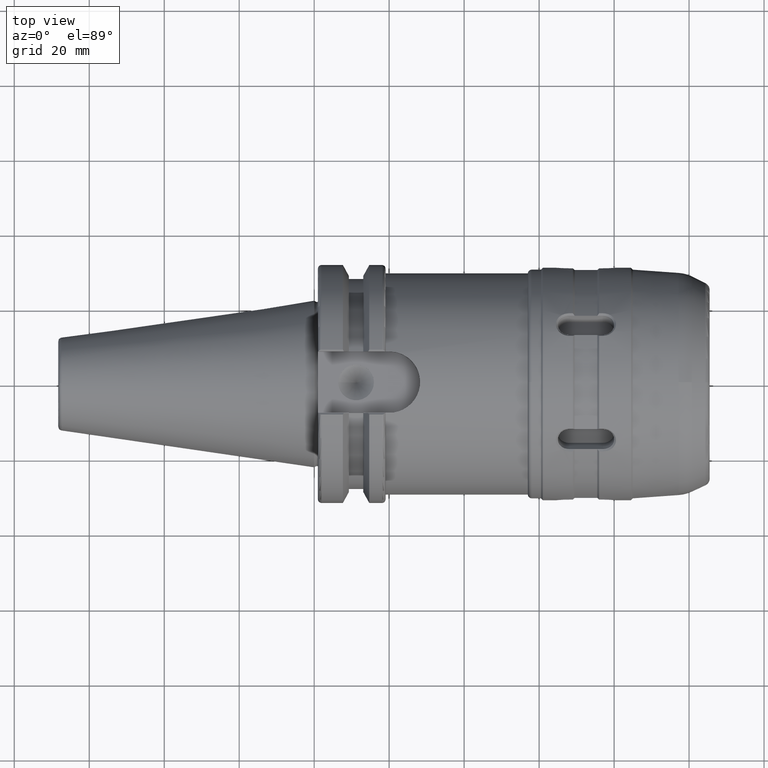
[diagram: clean part render]
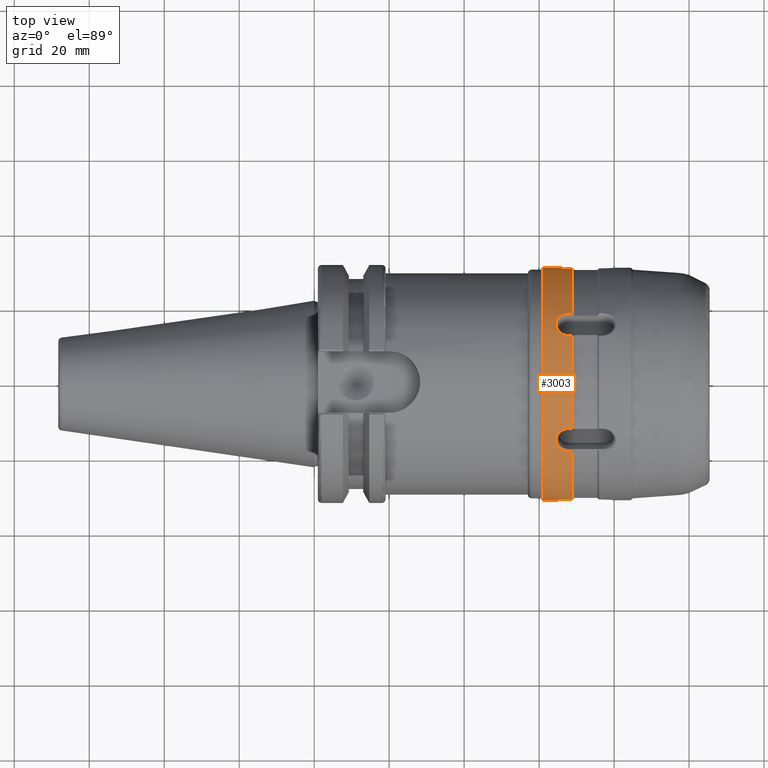
[diagram: same view with one face highlighted and labeled with its STEP entity id]
A machine part, top view. The second image highlights one B-rep face of the part: STEP entity #3003.
In plain terms, the highlighted cylindrical surface (bore or boss wall) has radius 31 mm, axis along (1, 0, 0).
Its self-contained STEP definition (entity closure, byte-faithful):
#382=FACE_OUTER_BOUND('',#568,.T.);
#568=EDGE_LOOP('',(#2611,#2612,#2613,#2614,#2615,#2616,#2617,#2618,#2619,
#2620,#2621,#2622,#2623,#2624,#2625,#2626,#2627,#2628,#2629,#2630,#2631,
#2632,#2633,#2634,#2635,#2636,#2637,#2638));
#675=CIRCLE('',#3253,31.);
#681=CIRCLE('',#3269,31.);
#687=CIRCLE('',#3285,31.);
#693=CIRCLE('',#3301,31.);
#699=CIRCLE('',#3317,31.);
#704=CIRCLE('',#3336,31.);
#705=CIRCLE('',#3338,31.);
#831=LINE('',#4883,#1034);
#833=LINE('',#4969,#1036);
#851=LINE('',#5123,#1054);
#853=LINE('',#5209,#1056);
#871=LINE('',#5368,#1074);
#873=LINE('',#5459,#1076);
#891=LINE('',#5631,#1094);
#893=LINE('',#5717,#1096);
#911=LINE('',#5871,#1114);
#913=LINE('',#5957,#1116);
#916=LINE('',#6011,#1119);
#917=LINE('',#6014,#1120);
#918=LINE('',#6029,#1121);
#1034=VECTOR('',#3773,10.);
#1036=VECTOR('',#3777,10.);
#1054=VECTOR('',#3825,10.);
#1056=VECTOR('',#3829,10.);
#1074=VECTOR('',#3877,10.);
#1076=VECTOR('',#3881,10.);
#1094=VECTOR('',#3929,10.);
#1096=VECTOR('',#3933,10.);
#1114=VECTOR('',#3981,10.);
#1116=VECTOR('',#3985,10.);
#1119=VECTOR('',#4034,31.);
#1120=VECTOR('',#4037,10.);
#1121=VECTOR('',#4038,10.);
#1172=B_SPLINE_CURVE_WITH_KNOTS('',3,(#4938,#4939,#4940,#4941,#4942,#4943,
#4944,#4945,#4946,#4947,#4948,#4949,#4950),.UNSPECIFIED.,.F.,.F.,(4,1,1,
1,1,1,1,1,1,1,4),(-0.904655840680631,-0.775419292011969,-0.646182743343307,
-0.613873606176142,-0.581564469008977,-0.516946194674646,-0.387709646005984,
-0.323091371671654,-0.258473097337323,-0.129236548668661,2.22044604925031E-16),
 .UNSPECIFIED.);
#1176=B_SPLINE_CURVE_WITH_KNOTS('',3,(#5178,#5179,#5180,#5181,#5182,#5183,
#5184,#5185,#5186,#5187,#5188,#5189,#5190),.UNSPECIFIED.,.F.,.F.,(4,1,1,
1,1,1,1,1,1,1,4),(-0.904655840680631,-0.775419292011969,-0.646182743343308,
-0.613873606176142,-0.59771903759256,-0.581564469008977,-0.387709646005985,
-0.258473097337323,-0.193854823002992,-0.129236548668661,2.22044604925031E-16),
 .UNSPECIFIED.);
#1181=B_SPLINE_CURVE_WITH_KNOTS('',3,(#5424,#5425,#5426,#5427,#5428,#5429,
#5430,#5431,#5432),.UNSPECIFIED.,.F.,.F.,(4,1,1,1,1,1,4),(-0.904655840680631,
-0.775419292011969,-0.646182743343307,-0.613873606176142,-0.597719037592559,
-0.581564469008977,-0.452237053198081),.UNSPECIFIED.);
#1182=B_SPLINE_CURVE_WITH_KNOTS('',3,(#5433,#5434,#5435,#5436,#5437,#5438,
#5439,#5440),.UNSPECIFIED.,.F.,.F.,(4,1,1,1,1,4),(-0.452237053198081,-0.387709646005984,
-0.258473097337323,-0.193854823002992,-0.129236548668661,3.93125706078922E-16),
 .UNSPECIFIED.);
#1186=B_SPLINE_CURVE_WITH_KNOTS('',3,(#5686,#5687,#5688,#5689,#5690,#5691,
#5692,#5693,#5694,#5695,#5696,#5697,#5698),.UNSPECIFIED.,.F.,.F.,(4,1,1,
1,1,1,1,1,1,1,4),(-0.904655840680631,-0.775419292011969,-0.710801017677639,
-0.646182743343308,-0.516946194674646,-0.323091371671654,-0.306936803088071,
-0.290782234504489,-0.258473097337323,-0.129236548668662,1.38777878078153E-17),
 .UNSPECIFIED.);
#1190=B_SPLINE_CURVE_WITH_KNOTS('',3,(#5926,#5927,#5928,#5929,#5930,#5931,
#5932,#5933,#5934,#5935,#5936,#5937,#5938),.UNSPECIFIED.,.F.,.F.,(4,1,1,
1,1,1,1,1,1,1,4),(-0.904655840680631,-0.775419292011969,-0.646182743343308,
-0.613873606176142,-0.59771903759256,-0.581564469008977,-0.387709646005985,
-0.258473097337323,-0.193854823002992,-0.129236548668661,2.22044604925033E-16),
 .UNSPECIFIED.);
#1192=B_SPLINE_CURVE_WITH_KNOTS('',3,(#6016,#6017,#6018,#6019,#6020,#6021,
#6022,#6023,#6024,#6025,#6026,#6027,#6028),.UNSPECIFIED.,.F.,.F.,(4,1,1,
1,1,1,1,1,1,1,4),(-0.904655840680631,-0.775419292011969,-0.646182743343308,
-0.613873606176142,-0.59771903759256,-0.581564469008977,-0.387709646005985,
-0.258473097337323,-0.193854823002992,-0.129236548668661,2.18503731613977E-16),
 .UNSPECIFIED.);
#1326=VERTEX_POINT('',#4877);
#1327=VERTEX_POINT('',#4881);
#1328=VERTEX_POINT('',#4936);
#1329=VERTEX_POINT('',#4965);
#1332=VERTEX_POINT('',#4977);
#1351=VERTEX_POINT('',#5121);
#1352=VERTEX_POINT('',#5176);
#1353=VERTEX_POINT('',#5205);
#1356=VERTEX_POINT('',#5217);
#1376=VERTEX_POINT('',#5366);
#1377=VERTEX_POINT('',#5421);
#1378=VERTEX_POINT('',#5423);
#1379=VERTEX_POINT('',#5455);
#1382=VERTEX_POINT('',#5467);
#1401=VERTEX_POINT('',#5629);
#1402=VERTEX_POINT('',#5684);
#1403=VERTEX_POINT('',#5713);
#1406=VERTEX_POINT('',#5725);
#1425=VERTEX_POINT('',#5869);
#1426=VERTEX_POINT('',#5924);
#1427=VERTEX_POINT('',#5953);
#1430=VERTEX_POINT('',#5965);
#1435=VERTEX_POINT('',#6000);
#1437=VERTEX_POINT('',#6010);
#1438=VERTEX_POINT('',#6013);
#1439=VERTEX_POINT('',#6015);
#1676=EDGE_CURVE('',#1327,#1326,#831,.T.);
#1678=EDGE_CURVE('',#1328,#1327,#1172,.T.);
#1681=EDGE_CURVE('',#1329,#1328,#833,.T.);
#1685=EDGE_CURVE('',#1332,#1329,#675,.T.);
#1714=EDGE_CURVE('',#1351,#1332,#851,.T.);
#1716=EDGE_CURVE('',#1352,#1351,#1176,.T.);
#1719=EDGE_CURVE('',#1353,#1352,#853,.T.);
#1723=EDGE_CURVE('',#1356,#1353,#681,.T.);
#1753=EDGE_CURVE('',#1376,#1356,#871,.T.);
#1755=EDGE_CURVE('',#1377,#1378,#1181,.T.);
#1756=EDGE_CURVE('',#1378,#1376,#1182,.T.);
#1759=EDGE_CURVE('',#1379,#1377,#873,.T.);
#1763=EDGE_CURVE('',#1382,#1379,#687,.T.);
#1792=EDGE_CURVE('',#1401,#1382,#891,.T.);
#1794=EDGE_CURVE('',#1402,#1401,#1186,.T.);
#1797=EDGE_CURVE('',#1403,#1402,#893,.T.);
#1801=EDGE_CURVE('',#1406,#1403,#693,.T.);
#1830=EDGE_CURVE('',#1425,#1406,#911,.T.);
#1832=EDGE_CURVE('',#1426,#1425,#1190,.T.);
#1835=EDGE_CURVE('',#1427,#1426,#913,.T.);
#1839=EDGE_CURVE('',#1430,#1427,#699,.T.);
#1848=EDGE_CURVE('',#1326,#1435,#704,.T.);
#1851=EDGE_CURVE('',#1378,#1437,#916,.T.);
#1852=EDGE_CURVE('',#1437,#1437,#705,.T.);
#1853=EDGE_CURVE('',#1438,#1430,#917,.T.);
#1854=EDGE_CURVE('',#1439,#1438,#1192,.T.);
#1855=EDGE_CURVE('',#1435,#1439,#918,.T.);
#2611=ORIENTED_EDGE('',*,*,#1681,.F.);
#2612=ORIENTED_EDGE('',*,*,#1685,.F.);
#2613=ORIENTED_EDGE('',*,*,#1714,.F.);
#2614=ORIENTED_EDGE('',*,*,#1716,.F.);
#2615=ORIENTED_EDGE('',*,*,#1719,.F.);
#2616=ORIENTED_EDGE('',*,*,#1723,.F.);
#2617=ORIENTED_EDGE('',*,*,#1753,.F.);
#2618=ORIENTED_EDGE('',*,*,#1756,.F.);
#2619=ORIENTED_EDGE('',*,*,#1851,.T.);
#2620=ORIENTED_EDGE('',*,*,#1852,.T.);
#2621=ORIENTED_EDGE('',*,*,#1851,.F.);
#2622=ORIENTED_EDGE('',*,*,#1755,.F.);
#2623=ORIENTED_EDGE('',*,*,#1759,.F.);
#2624=ORIENTED_EDGE('',*,*,#1763,.F.);
#2625=ORIENTED_EDGE('',*,*,#1792,.F.);
#2626=ORIENTED_EDGE('',*,*,#1794,.F.);
#2627=ORIENTED_EDGE('',*,*,#1797,.F.);
#2628=ORIENTED_EDGE('',*,*,#1801,.F.);
#2629=ORIENTED_EDGE('',*,*,#1830,.F.);
#2630=ORIENTED_EDGE('',*,*,#1832,.F.);
#2631=ORIENTED_EDGE('',*,*,#1835,.F.);
#2632=ORIENTED_EDGE('',*,*,#1839,.F.);
#2633=ORIENTED_EDGE('',*,*,#1853,.F.);
#2634=ORIENTED_EDGE('',*,*,#1854,.F.);
#2635=ORIENTED_EDGE('',*,*,#1855,.F.);
#2636=ORIENTED_EDGE('',*,*,#1848,.F.);
#2637=ORIENTED_EDGE('',*,*,#1676,.F.);
#2638=ORIENTED_EDGE('',*,*,#1678,.F.);
#2855=CYLINDRICAL_SURFACE('',#3337,31.);
#3003=ADVANCED_FACE('',(#382),#2855,.T.);
#3253=AXIS2_PLACEMENT_3D('',#4981,#3782,#3783);
#3269=AXIS2_PLACEMENT_3D('',#5221,#3834,#3835);
#3285=AXIS2_PLACEMENT_3D('',#5471,#3886,#3887);
#3301=AXIS2_PLACEMENT_3D('',#5729,#3938,#3939);
#3317=AXIS2_PLACEMENT_3D('',#5969,#3990,#3991);
#3336=AXIS2_PLACEMENT_3D('',#6001,#4030,#4031);
#3337=AXIS2_PLACEMENT_3D('',#6009,#4032,#4033);
#3338=AXIS2_PLACEMENT_3D('',#6012,#4035,#4036);
#3773=DIRECTION('',(1.,0.,0.));
#3777=DIRECTION('',(-1.,0.,0.));
#3782=DIRECTION('center_axis',(1.,0.,0.));
#3783=DIRECTION('ref_axis',(0.,0.,-1.));
#3825=DIRECTION('',(1.,0.,0.));
#3829=DIRECTION('',(-1.,0.,0.));
#3834=DIRECTION('center_axis',(1.,0.,0.));
#3835=DIRECTION('ref_axis',(0.,0.,-1.));
#3877=DIRECTION('',(1.,0.,0.));
#3881=DIRECTION('',(-1.,0.,0.));
#3886=DIRECTION('center_axis',(1.,0.,0.));
#3887=DIRECTION('ref_axis',(0.,0.,-1.));
#3929=DIRECTION('',(1.,0.,0.));
#3933=DIRECTION('',(-1.,0.,0.));
#3938=DIRECTION('center_axis',(1.,0.,0.));
#3939=DIRECTION('ref_axis',(0.,0.,-1.));
#3981=DIRECTION('',(1.,0.,0.));
#3985=DIRECTION('',(-1.,0.,0.));
#3990=DIRECTION('center_axis',(1.,0.,0.));
#3991=DIRECTION('ref_axis',(0.,0.,-1.));
#4030=DIRECTION('center_axis',(1.,0.,0.));
#4031=DIRECTION('ref_axis',(0.,0.,-1.));
#4032=DIRECTION('center_axis',(1.,0.,0.));
#4033=DIRECTION('ref_axis',(0.,1.,0.));
#4034=DIRECTION('',(-1.,0.,0.));
#4035=DIRECTION('center_axis',(1.,0.,0.));
#4036=DIRECTION('ref_axis',(0.,0.,-1.));
#4037=DIRECTION('',(1.,0.,0.));
#4038=DIRECTION('',(-1.,0.,0.));
#4877=CARTESIAN_POINT('',(12.,18.429753747395,-24.9267763020086));
#4881=CARTESIAN_POINT('',(11.,18.429753747395,-24.9267763020086));
#4883=CARTESIAN_POINT('',(8.,18.429753747395,-24.9267763020086));
#4936=CARTESIAN_POINT('',(11.,12.3723446382936,-28.42402308174));
#4938=CARTESIAN_POINT('Ctrl Pts',(11.,12.3723446382936,-28.42402308174));
#4939=CARTESIAN_POINT('Ctrl Pts',(10.4970771842854,12.3723446382936,-28.42402308174));
#4940=CARTESIAN_POINT('Ctrl Pts',(9.41124218297896,12.5945108429408,-28.3291379518645));
#4941=CARTESIAN_POINT('Ctrl Pts',(8.48424712302351,13.2823380716418,-28.0147794775608));
#4942=CARTESIAN_POINT('Ctrl Pts',(8.03035498320134,13.8528813193949,-27.7336147169953));
#4943=CARTESIAN_POINT('Ctrl Pts',(7.77010327328329,14.2674292493954,-27.5240961931931));
#4944=CARTESIAN_POINT('Ctrl Pts',(7.46359429484923,15.0622047536732,-27.1039213911845));
#4945=CARTESIAN_POINT('Ctrl Pts',(7.46356780118212,15.9404964130336,-26.597111945818));
#4946=CARTESIAN_POINT('Ctrl Pts',(7.81631423266722,16.8118758355077,-26.0492527416537));
#4947=CARTESIAN_POINT('Ctrl Pts',(8.38390459810497,17.5528905377004,-25.5580720729154));
#4948=CARTESIAN_POINT('Ctrl Pts',(9.40963362267906,18.2345090100924,-25.0731575148589));
#4949=CARTESIAN_POINT('Ctrl Pts',(10.4970771842854,18.4297537473952,-24.9267763020085));
#4950=CARTESIAN_POINT('Ctrl Pts',(11.,18.4297537473952,-24.9267763020085));
#4965=CARTESIAN_POINT('',(12.,12.3723446382939,-28.4240230817399));
#4969=CARTESIAN_POINT('',(8.,12.3723446382939,-28.4240230817399));
#4977=CARTESIAN_POINT('',(12.,-12.3723446382939,-28.4240230817399));
#4981=CARTESIAN_POINT('Origin',(12.,0.,0.));
#5121=CARTESIAN_POINT('',(11.,-12.3723446382939,-28.4240230817398));
#5123=CARTESIAN_POINT('',(8.,-12.3723446382939,-28.4240230817398));
#5176=CARTESIAN_POINT('',(11.,-18.4297537473953,-24.9267763020084));
#5178=CARTESIAN_POINT('Ctrl Pts',(11.,-18.4297537473953,-24.9267763020084));
#5179=CARTESIAN_POINT('Ctrl Pts',(10.4970771842855,-18.4297537473953,-24.9267763020084));
#5180=CARTESIAN_POINT('Ctrl Pts',(9.41235521528633,-18.2354258537435,-25.072254454589));
#5181=CARTESIAN_POINT('Ctrl Pts',(8.48552225926529,-17.6179848260173,-25.5114631475976));
#5182=CARTESIAN_POINT('Ctrl Pts',(8.07011031432345,-17.1337493147212,-25.8352132127233));
#5183=CARTESIAN_POINT('Ctrl Pts',(7.93439983287521,-16.9433293273806,-25.960344866675));
#5184=CARTESIAN_POINT('Ctrl Pts',(7.50654546211611,-16.2407089498084,-26.4163098821583));
#5185=CARTESIAN_POINT('Ctrl Pts',(7.33589340029948,-15.0470425558619,-27.1297599619316));
#5186=CARTESIAN_POINT('Ctrl Pts',(8.0711442805531,-13.7061530408895,-27.8103678876201));
#5187=CARTESIAN_POINT('Ctrl Pts',(8.78591821587874,-13.0638726163068,-28.1143468169065));
#5188=CARTESIAN_POINT('Ctrl Pts',(9.68557735755303,-12.5340963881548,-28.3551023774396));
#5189=CARTESIAN_POINT('Ctrl Pts',(10.4970771842854,-12.3723446382936,-28.42402308174));
#5190=CARTESIAN_POINT('Ctrl Pts',(11.,-12.3723446382936,-28.42402308174));
#5205=CARTESIAN_POINT('',(12.,-18.429753747395,-24.9267763020086));
#5209=CARTESIAN_POINT('',(8.,-18.429753747395,-24.9267763020086));
#5217=CARTESIAN_POINT('',(12.,-30.8020983856889,-3.49724677973123));
#5221=CARTESIAN_POINT('Origin',(12.,0.,0.));
#5366=CARTESIAN_POINT('',(11.,-30.8020983856889,-3.49724677973123));
#5368=CARTESIAN_POINT('',(8.,-30.8020983856889,-3.49724677973123));
#5421=CARTESIAN_POINT('',(11.,-30.7991118216197,3.49392896121436));
#5423=CARTESIAN_POINT('',(7.49590611160131,-30.9974559926452,7.61915364486501E-7));
#5424=CARTESIAN_POINT('Ctrl Pts',(11.,-30.7987175255084,3.4934909317903));
#5425=CARTESIAN_POINT('Ctrl Pts',(10.4975693062956,-30.7987175255084,3.4934909317903));
#5426=CARTESIAN_POINT('Ctrl Pts',(9.41391720535863,-30.8274857733144,3.25267007998341));
#5427=CARTESIAN_POINT('Ctrl Pts',(8.48811250669777,-30.898989553176,2.49907514499072));
#5428=CARTESIAN_POINT('Ctrl Pts',(8.07319472175539,-30.9371695210432,1.91846686657268));
#5429=CARTESIAN_POINT('Ctrl Pts',(7.93764707128572,-30.9502998861875,1.69124183339807));
#5430=CARTESIAN_POINT('Ctrl Pts',(7.63224070475512,-30.9813726563035,1.0940912226021));
#5431=CARTESIAN_POINT('Ctrl Pts',(7.49715044348278,-30.9962010453269,0.516375129633201));
#5432=CARTESIAN_POINT('Ctrl Pts',(7.49659268024297,-30.996588027987,1.12341766420054E-6));
#5433=CARTESIAN_POINT('Ctrl Pts',(7.49281043029032,-31.0003651202757,-4.88449250712897E-7));
#5434=CARTESIAN_POINT('Ctrl Pts',(7.49253093683462,-31.0005586547839,-0.257948509005002));
#5435=CARTESIAN_POINT('Ctrl Pts',(7.58115878700688,-30.9915552811669,-1.03461956969995));
#5436=CARTESIAN_POINT('Ctrl Pts',(8.07114958964886,-30.9375606102236,-2.03530370792798));
#5437=CARTESIAN_POINT('Ctrl Pts',(8.78592363852645,-30.8796739654829,-2.74352539898177));
#5438=CARTESIAN_POINT('Ctrl Pts',(9.68558176881665,-30.8232863632782,-3.32270369229859));
#5439=CARTESIAN_POINT('Ctrl Pts',(10.4970771842854,-30.8020983856889,-3.49724677973154));
#5440=CARTESIAN_POINT('Ctrl Pts',(11.,-30.8020983856889,-3.49724677973154));
#5455=CARTESIAN_POINT('',(12.,-30.8020983856889,3.49724677973124));
#5459=CARTESIAN_POINT('',(8.,-30.8020983856889,3.49724677973123));
#5467=CARTESIAN_POINT('',(12.,-18.429753747395,24.9267763020086));
#5471=CARTESIAN_POINT('Origin',(12.,0.,0.));
#5629=CARTESIAN_POINT('',(11.,-18.429753747395,24.9267763020086));
#5631=CARTESIAN_POINT('',(8.,-18.429753747395,24.9267763020086));
#5684=CARTESIAN_POINT('',(11.,-12.3723446382936,28.42402308174));
#5686=CARTESIAN_POINT('Ctrl Pts',(11.,-12.3723446382936,28.42402308174));
#5687=CARTESIAN_POINT('Ctrl Pts',(10.4970771842855,-12.3723446382936,28.42402308174));
#5688=CARTESIAN_POINT('Ctrl Pts',(9.68557735755302,-12.5340963881548,28.3551023774396));
#5689=CARTESIAN_POINT('Ctrl Pts',(8.78591821587874,-13.0638726163067,28.1143468169065));
#5690=CARTESIAN_POINT('Ctrl Pts',(8.07114428055309,-13.7061530408894,27.8103678876201));
#5691=CARTESIAN_POINT('Ctrl Pts',(7.33589340029945,-15.0470425558618,27.1297599619315));
#5692=CARTESIAN_POINT('Ctrl Pts',(7.50654546211607,-16.2407089498083,26.4163098821583));
#5693=CARTESIAN_POINT('Ctrl Pts',(7.93439983287516,-16.9433293273805,25.960344866675));
#5694=CARTESIAN_POINT('Ctrl Pts',(8.07011031432341,-17.1337493147211,25.8352132127232));
#5695=CARTESIAN_POINT('Ctrl Pts',(8.48552225926525,-17.6179848260173,25.5114631475976));
#5696=CARTESIAN_POINT('Ctrl Pts',(9.41235521528631,-18.2354258537434,25.072254454589));
#5697=CARTESIAN_POINT('Ctrl Pts',(10.4970771842854,-18.4297537473953,24.9267763020084));
#5698=CARTESIAN_POINT('Ctrl Pts',(11.,-18.4297537473953,24.9267763020084));
#5713=CARTESIAN_POINT('',(12.,-12.3723446382939,28.4240230817399));
#5717=CARTESIAN_POINT('',(8.,-12.3723446382939,28.4240230817399));
#5725=CARTESIAN_POINT('',(12.,12.3723446382939,28.4240230817399));
#5729=CARTESIAN_POINT('Origin',(12.,0.,0.));
#5869=CARTESIAN_POINT('',(11.,12.3723446382939,28.4240230817399));
#5871=CARTESIAN_POINT('',(8.,12.3723446382939,28.4240230817399));
#5924=CARTESIAN_POINT('',(11.,18.4297537473953,24.9267763020084));
#5926=CARTESIAN_POINT('Ctrl Pts',(11.,18.4297537473953,24.9267763020084));
#5927=CARTESIAN_POINT('Ctrl Pts',(10.4970771842854,18.4297537473953,24.9267763020084));
#5928=CARTESIAN_POINT('Ctrl Pts',(9.4123552152863,18.2354258537434,25.072254454589));
#5929=CARTESIAN_POINT('Ctrl Pts',(8.48552225926525,17.6179848260172,25.5114631475975));
#5930=CARTESIAN_POINT('Ctrl Pts',(8.07011031432341,17.1337493147211,25.8352132127232));
#5931=CARTESIAN_POINT('Ctrl Pts',(7.93439983287517,16.9433293273805,25.9603448666749));
#5932=CARTESIAN_POINT('Ctrl Pts',(7.50654546211607,16.2407089498083,26.4163098821582));
#5933=CARTESIAN_POINT('Ctrl Pts',(7.33589340029945,15.0470425558618,27.1297599619315));
#5934=CARTESIAN_POINT('Ctrl Pts',(8.0711442805531,13.7061530408894,27.8103678876201));
#5935=CARTESIAN_POINT('Ctrl Pts',(8.78591821587872,13.0638726163068,28.1143468169065));
#5936=CARTESIAN_POINT('Ctrl Pts',(9.68557735755302,12.5340963881548,28.3551023774396));
#5937=CARTESIAN_POINT('Ctrl Pts',(10.4970771842854,12.3723446382936,28.42402308174));
#5938=CARTESIAN_POINT('Ctrl Pts',(11.,12.3723446382936,28.42402308174));
#5953=CARTESIAN_POINT('',(12.,18.429753747395,24.9267763020086));
#5957=CARTESIAN_POINT('',(8.,18.429753747395,24.9267763020086));
#5965=CARTESIAN_POINT('',(12.,30.8020983856889,3.49724677973123));
#5969=CARTESIAN_POINT('Origin',(12.,0.,0.));
#6000=CARTESIAN_POINT('',(12.,30.8020983856889,-3.49724677973123));
#6001=CARTESIAN_POINT('Origin',(12.,0.,0.));
#6009=CARTESIAN_POINT('Origin',(8.,0.,0.));
#6010=CARTESIAN_POINT('',(3.99999999999999,-31.,-3.79640507735679E-15));
#6011=CARTESIAN_POINT('',(8.,-31.,-3.79640507735679E-15));
#6012=CARTESIAN_POINT('Origin',(3.99999999999999,0.,0.));
#6013=CARTESIAN_POINT('',(11.,30.8020983856889,3.49724677973123));
#6014=CARTESIAN_POINT('',(8.,30.8020983856889,3.49724677973123));
#6015=CARTESIAN_POINT('',(11.,30.8020983856889,-3.49724677973154));
#6016=CARTESIAN_POINT('Ctrl Pts',(11.,30.8020983856889,-3.49724677973154));
#6017=CARTESIAN_POINT('Ctrl Pts',(10.4970771842855,30.8020983856889,-3.49724677973154));
#6018=CARTESIAN_POINT('Ctrl Pts',(9.4123604572527,30.8309213237813,-3.25622657232994));
#6019=CARTESIAN_POINT('Ctrl Pts',(8.4855332656767,30.9025662130285,-2.50190867131485));
#6020=CARTESIAN_POINT('Ctrl Pts',(8.07012419914553,30.9408239255703,-1.92067700219128));
#6021=CARTESIAN_POINT('Ctrl Pts',(7.93441363137981,30.9539811304045,-1.69320249157763));
#6022=CARTESIAN_POINT('Ctrl Pts',(7.50656006802572,30.9975482128414,-0.856732662626907));
#6023=CARTESIAN_POINT('Ctrl Pts',(7.33590490778713,31.0185810996815,0.533749623874849));
#6024=CARTESIAN_POINT('Ctrl Pts',(8.07114958964885,30.9375606102236,2.03530370792798));
#6025=CARTESIAN_POINT('Ctrl Pts',(8.78592363852644,30.8796739654829,2.74352539898178));
#6026=CARTESIAN_POINT('Ctrl Pts',(9.68558176881663,30.8232863632782,3.32270369229859));
#6027=CARTESIAN_POINT('Ctrl Pts',(10.4970771842854,30.8020983856889,3.49724677973154));
#6028=CARTESIAN_POINT('Ctrl Pts',(11.,30.8020983856889,3.49724677973154));
#6029=CARTESIAN_POINT('',(8.,30.8020983856889,-3.49724677973123));